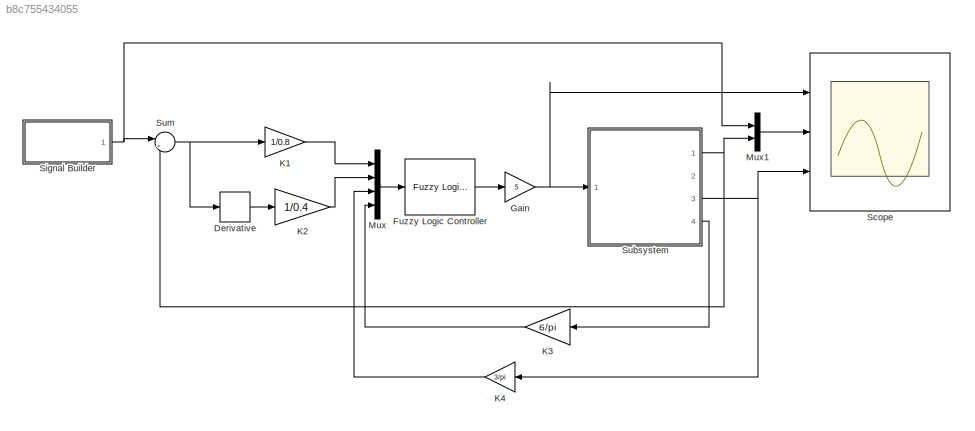
MODEL slx_b8c755434055
KIND model
CONFIG AbsTol = auto
CONFIG EnableMultiTasking = off
CONFIG FixedStep = 0.1
CONFIG MaxStep = auto
CONFIG MinStep = auto
CONFIG RelTol = 1e-3
CONFIG SampleTimeConstraint = Unconstrained
CONFIG Solver = ode5
CONFIG SolverName = ode5
CONFIG StartTime = 0.0
CONFIG StopTime = 60
BLOCK [Derivative] Derivative
BLOCK [Reference] Fuzzy Logic Controller  REF=fuzblock/Fuzzy Logic   (lib defined in mdl_858b3b3e7478)
Controller
  Ports = [1, 1]
  SourceBlock = fuzblock/Fuzzy Logic \nController
  SourceProductBaseCode = FL
  SourceProductName = Fuzzy Logic Toolbox
  SourceType = Fuzzy Inference System
BLOCK [Gain] Gain
  Gain = 5
  OutDataTypeStr = Inherit: Inherit via internal rule
  ParamDataTypeStr = Inherit: Inherit via internal rule
  SaturateOnIntegerOverflow = off
BLOCK [Gain] K1
  Gain = 1/0.8
  OutDataTypeStr = Inherit: Inherit via internal rule
  ParamDataTypeStr = Inherit: Inherit via internal rule
  SaturateOnIntegerOverflow = off
BLOCK [Gain] K2
  Gain = 1/0.4
  OutDataTypeStr = Inherit: Inherit via internal rule
  ParamDataTypeStr = Inherit: Inherit via internal rule
  SaturateOnIntegerOverflow = off
BLOCK [Gain] K3
  Gain = 6/pi
  OutDataTypeStr = Inherit: Inherit via internal rule
  ParamDataTypeStr = Inherit: Inherit via internal rule
  SaturateOnIntegerOverflow = off
BLOCK [Gain] K4
  Gain = 3/pi
  OutDataTypeStr = Inherit: Inherit via internal rule
  ParamDataTypeStr = Inherit: Inherit via internal rule
  SaturateOnIntegerOverflow = off
BLOCK [Mux] Mux
  DisplayOption = bar
  Ports = [4, 1]
BLOCK [Mux] Mux1
  DisplayOption = bar
  Inputs = 2
  Ports = [2, 1]
BLOCK [Scope] Scope
  Floating = off
  NumInputPorts = 3
  Ports = [3]
  ScopeSpecificationString = Simulink.scopes.TimeScopeBlockCfg('CurrentConfiguration', extmgr.ConfigurationSet(extmgr.Configuration('Core','General UI',true,'FigureColor',[1 1 1]),extmgr.Configuration('Core','Source UI',true),extmgr.Configuration('Sources','WiredSimulink',true),extmgr.Configuration('Visuals','Time Domain',true,'SerializedDisplays',{struct('MinYLimReal','-1.43996','MaxYLimReal','2.93777','YLabelReal','','MinYL...<+3150ch>
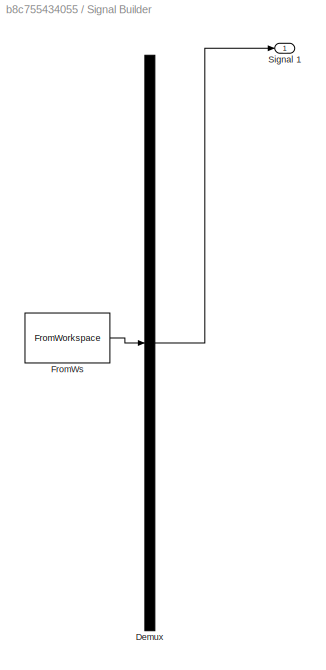
BLOCK [SubSystem] Signal Builder
  ClipboardFcn = sigbuilder_block('clipboard');
  CloseFcn = sigbuilder_block('close');
  ContinueFcn = sigbuilder_block('continue');
  CopyFcn = sigbuilder_block('copy');
  DeleteFcn = sigbuilder_block('delete');
  LoadFcn = sigbuilder_block('load');
  MaskHideContents = on
  ModelCloseFcn = sigbuilder_block('modelClose');
  NameChangeFcn = sigbuilder_block('namechange');
  OpenFcn = sigbuilder_block('open',[5.4 30 1141.2 522.6 ]);
  PauseFcn = sigbuilder_block('pause');
  Ports = [0, 1]
  PreSaveFcn = sigbuilder_block('preSave');
  RequestExecContextInheritance = off
  StartFcn = sigbuilder_block('start');
  StopFcn = sigbuilder_block('stop');
  Tag = STV Subsys
BLOCK [Demux] Signal Builder/Demux
  Outputs = 1
  Ports = [1, 1]
  Tag = STV Demux
BLOCK [FromWorkspace] Signal Builder/FromWs
  SampleTime = 0
  Tag = STV FromWs
  VariableName = tuvar
  ZeroCross = on
BLOCK [Outport] Signal Builder/Signal 1
  IconDisplay = Port number
  Tag = STV Outport
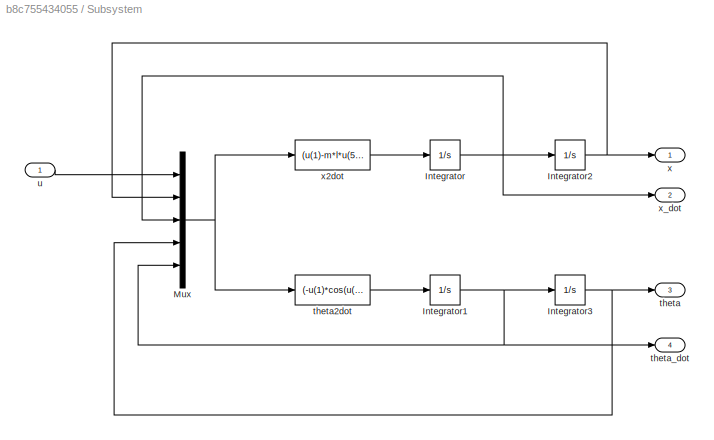
BLOCK [SubSystem] Subsystem
  Ports = [1, 4]
  RequestExecContextInheritance = off
BLOCK [Integrator] Subsystem/Integrator
  Ports = [1, 1]
BLOCK [Integrator] Subsystem/Integrator1
  Ports = [1, 1]
BLOCK [Integrator] Subsystem/Integrator2
  Ports = [1, 1]
BLOCK [Integrator] Subsystem/Integrator3
  Ports = [1, 1]
BLOCK [Mux] Subsystem/Mux
  DisplayOption = bar
  Inputs = 5
  Ports = [5, 1]
BLOCK [Outport] Subsystem/theta
  IconDisplay = Port number
  Port = 3
BLOCK [Fcn] Subsystem/theta2dot
  Expr = (-u(1)*cos(u(4))+m*g*u(5)^2*sin(u(4))*cos(u(4))+(M1+m)*(g*sin(u(4))))/(m*l*(cos(u(4))^2)-(M1+m)*l)
BLOCK [Outport] Subsystem/theta_dot
  IconDisplay = Port number
  Port = 4
BLOCK [Inport] Subsystem/u
  IconDisplay = Port number
BLOCK [Outport] Subsystem/x
  IconDisplay = Port number
BLOCK [Fcn] Subsystem/x2dot
  Expr = (u(1)-m*l*u(5)*sin(u(4))-m*g*sin(u(4))*cos(u(4)))/((M1+m)-m*(cos(u(4))^2))
BLOCK [Outport] Subsystem/x_dot
  IconDisplay = Port number
  Port = 2
BLOCK [Sum] Sum
  IconShape = round
  InputSameDT = off
  Inputs = |+-
  OutDataTypeStr = Inherit: Inherit via internal rule
  Ports = [2, 1]
  SaturateOnIntegerOverflow = off
LINE Derivative:1 -> K2:1
LINE Fuzzy Logic Controller:1 -> Gain:1
NET Gain:1 -> Scope:1, Subsystem:1
LINE K1:1 -> Mux:1
LINE K2:1 -> Mux:2
LINE K3:1 -> Mux:4
LINE K4:1 -> Mux:3
LINE Mux1:1 -> Scope:2
LINE Mux:1 -> Fuzzy Logic Controller:1
NET Signal Builder:1 -> Mux1:1, Sum:1
NET Subsystem/Integrator1:1 -> Subsystem/Integrator3:1, Subsystem/Mux:5, Subsystem/theta_dot:1
NET Subsystem/Integrator2:1 -> Subsystem/Mux:2, Subsystem/x:1
NET Subsystem/Integrator3:1 -> Subsystem/Mux:4, Subsystem/theta:1
NET Subsystem/Integrator:1 -> Subsystem/Integrator2:1, Subsystem/Mux:3, Subsystem/x_dot:1
NET Subsystem/Mux:1 -> Subsystem/theta2dot:1, Subsystem/x2dot:1
LINE Subsystem/theta2dot:1 -> Subsystem/Integrator1:1
LINE Subsystem/u:1 -> Subsystem/Mux:1
LINE Subsystem/x2dot:1 -> Subsystem/Integrator:1
NET Subsystem:1 -> Mux1:2, Sum:2
NET Subsystem:3 -> K4:1, Scope:3
LINE Subsystem:4 -> K3:1
NET Sum:1 -> Derivative:1, K1:1
note: NET lines group one-source signal fan-out (src -> all destinations, sorted); 1:1 wires keep LINE
